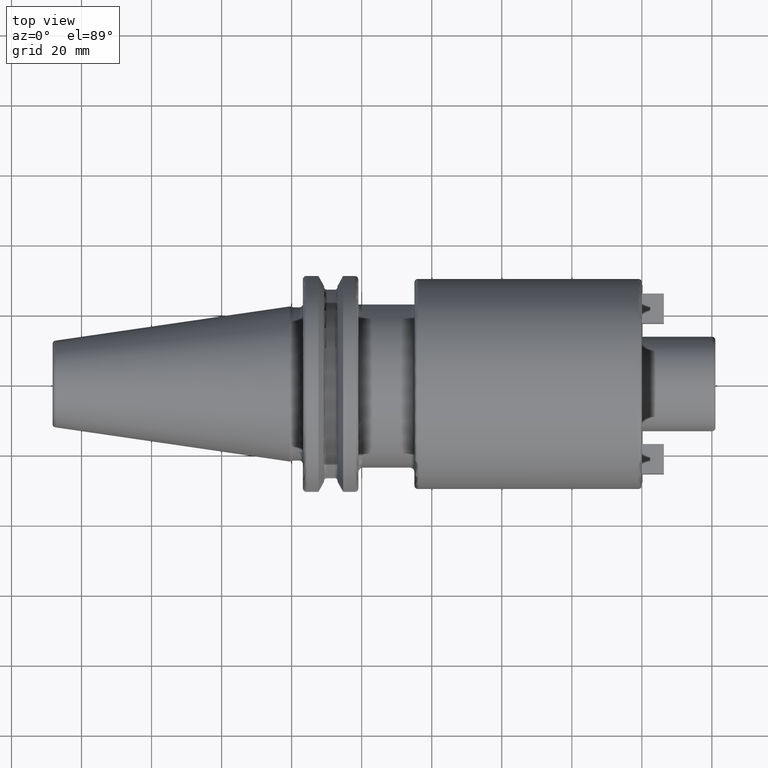
[diagram: clean part render]
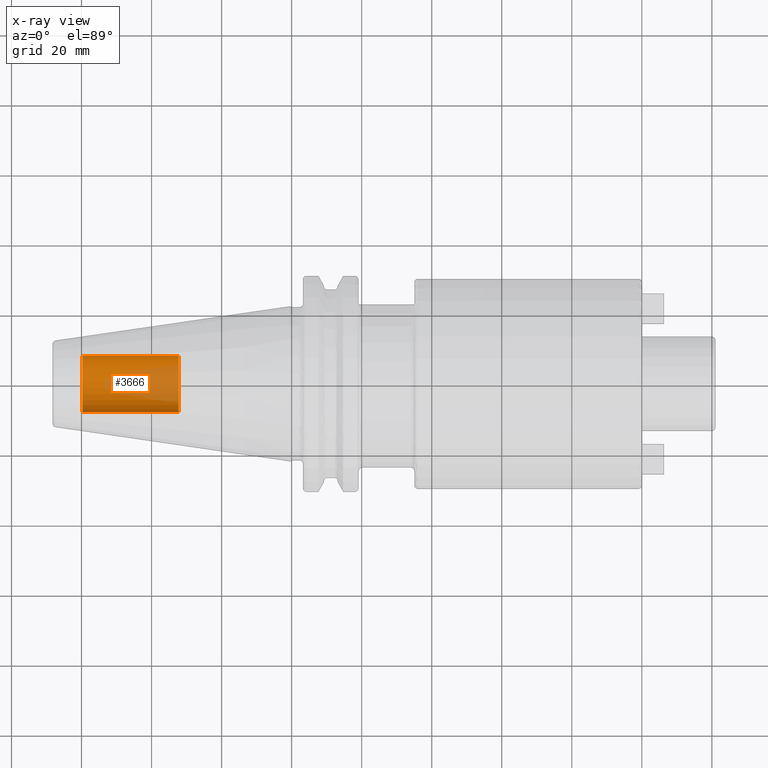
[diagram: x-ray — body ghosted, one internal face saturated and labeled with its STEP entity id]
A machine part, top view, then the same camera in x-ray: the body is ghosted and one INTERNAL B-rep face — a face not visible from any outside direction — is saturated and labeled: STEP entity #3666.
In plain terms, the highlighted cylindrical surface (edge-blend (fillet) strip) has radius 8.0028 mm, axis along (1, 0, 0).
Its self-contained STEP definition (entity closure, byte-faithful):
#3601=CARTESIAN_POINT('',(-5.98E1,0.E0,0.E0));
#3602=DIRECTION('',(-1.E0,0.E0,0.E0));
#3603=DIRECTION('',(0.E0,1.E0,0.E0));
#3604=AXIS2_PLACEMENT_3D('',#3601,#3602,#3603);
#3606=DIRECTION('',(1.E0,0.E0,0.E0));
#3607=VECTOR('',#3606,2.755E1);
#3608=CARTESIAN_POINT('',(-5.98E1,-8.00275E0,0.E0));
#3609=LINE('',#3608,#3607);
#3615=DIRECTION('',(1.E0,0.E0,0.E0));
#3616=VECTOR('',#3615,2.755E1);
#3617=CARTESIAN_POINT('',(-5.98E1,8.00275E0,0.E0));
#3618=LINE('',#3617,#3616);
#3624=CARTESIAN_POINT('',(-3.225E1,0.E0,0.E0));
#3625=DIRECTION('',(1.E0,0.E0,0.E0));
#3626=DIRECTION('',(0.E0,-1.E0,0.E0));
#3627=AXIS2_PLACEMENT_3D('',#3624,#3625,#3626);
#3639=CARTESIAN_POINT('',(-5.98E1,8.00275E0,0.E0));
#3640=CARTESIAN_POINT('',(-5.98E1,-8.00275E0,0.E0));
#3641=VERTEX_POINT('',#3639);
#3642=VERTEX_POINT('',#3640);
#3643=CARTESIAN_POINT('',(-3.225E1,8.00275E0,0.E0));
#3644=CARTESIAN_POINT('',(-3.225E1,-8.00275E0,0.E0));
#3645=VERTEX_POINT('',#3643);
#3646=VERTEX_POINT('',#3644);
#3651=CARTESIAN_POINT('',(-5.98E1,0.E0,0.E0));
#3652=DIRECTION('',(1.E0,0.E0,0.E0));
#3653=DIRECTION('',(0.E0,1.E0,0.E0));
#3654=AXIS2_PLACEMENT_3D('',#3651,#3652,#3653);
#3655=CYLINDRICAL_SURFACE('',#3654,8.00275E0);
#3657=ORIENTED_EDGE('',*,*,#3656,.T.);
#3659=ORIENTED_EDGE('',*,*,#3658,.T.);
#3661=ORIENTED_EDGE('',*,*,#3660,.T.);
#3663=ORIENTED_EDGE('',*,*,#3662,.F.);
#3664=EDGE_LOOP('',(#3657,#3659,#3661,#3663));
#3665=FACE_OUTER_BOUND('',#3664,.F.);
#3666=ADVANCED_FACE('',(#3665),#3655,.T.);
#3605=CIRCLE('',#3604,8.00275E0);
#3628=CIRCLE('',#3627,8.00275E0);
#3656=EDGE_CURVE('',#3641,#3642,#3605,.T.);
#3658=EDGE_CURVE('',#3642,#3646,#3609,.T.);
#3660=EDGE_CURVE('',#3646,#3645,#3628,.T.);
#3662=EDGE_CURVE('',#3641,#3645,#3618,.T.);